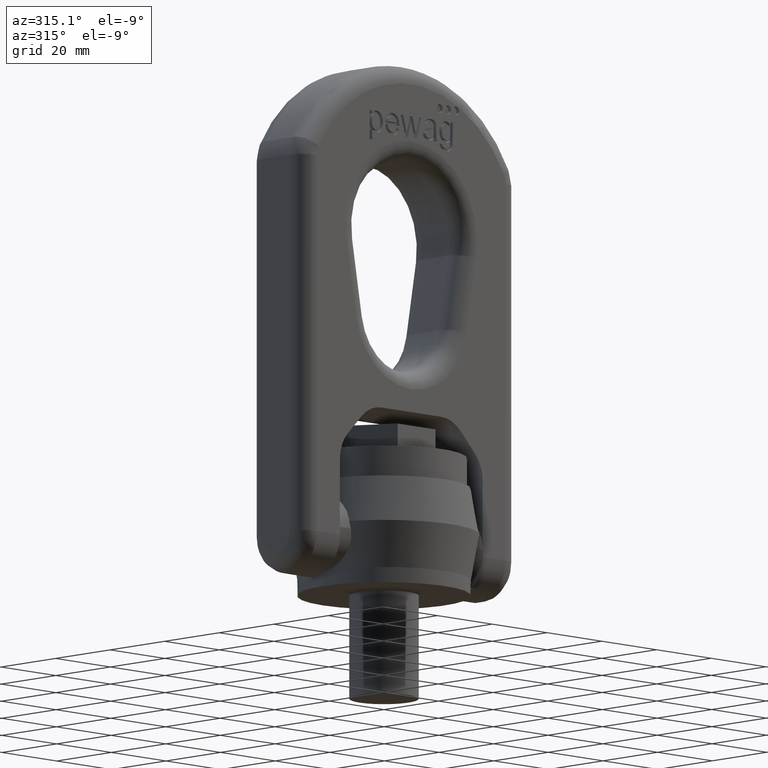
[diagram: clean part render]
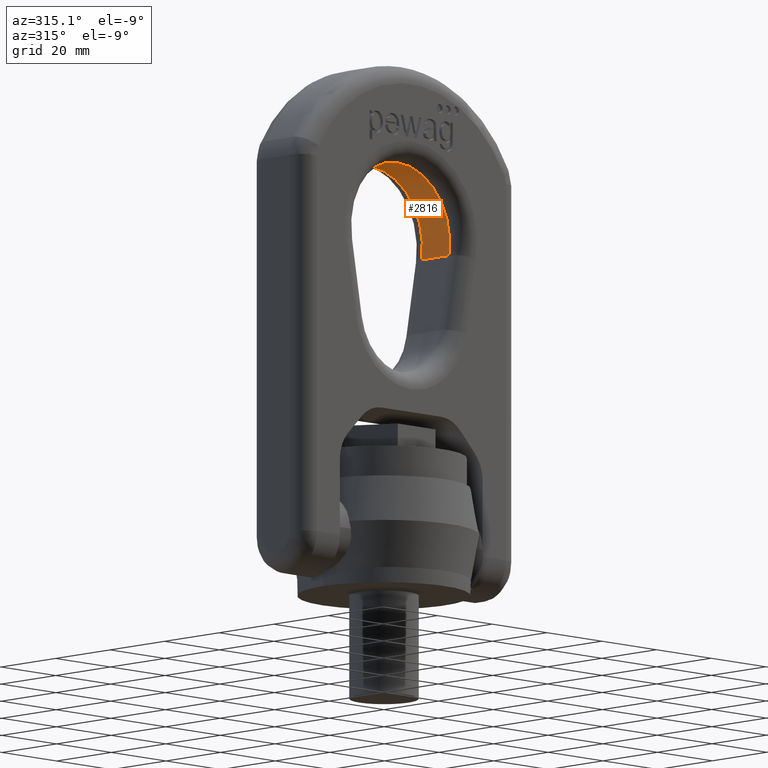
[diagram: same view with one face highlighted and labeled with its STEP entity id]
A machine part, auxiliary view. The second image highlights one B-rep face of the part: STEP entity #2816.
In plain terms, the highlighted cylindrical surface (partial cylindrical patch) has radius 19 mm, axis along (0, 1, 0).
Its self-contained STEP definition (entity closure, byte-faithful):
#1858=LINE('',#7726,#2166);
#1860=LINE('',#7732,#2168);
#2166=VECTOR('',#6329,1.);
#2168=VECTOR('',#6335,1.);
#2456=FACE_OUTER_BOUND('',#3194,.T.);
#2816=ADVANCED_FACE('',(#2456),#3045,.F.);
#3045=CYLINDRICAL_SURFACE('',#5898,19.);
#3194=EDGE_LOOP('',(#3723,#3724,#3725,#3726));
#3723=ORIENTED_EDGE('',*,*,#5352,.T.);
#3724=ORIENTED_EDGE('',*,*,#5354,.T.);
#3725=ORIENTED_EDGE('',*,*,#5355,.F.);
#3726=ORIENTED_EDGE('',*,*,#5356,.T.);
#4913=VERTEX_POINT('',#7725);
#4914=VERTEX_POINT('',#7727);
#4915=VERTEX_POINT('',#7731);
#4916=VERTEX_POINT('',#7733);
#5352=EDGE_CURVE('',#4914,#4913,#1858,.T.);
#5354=EDGE_CURVE('',#4913,#4915,#5787,.T.);
#5355=EDGE_CURVE('',#4916,#4915,#1860,.T.);
#5356=EDGE_CURVE('',#4916,#4914,#5788,.T.);
#5787=CIRCLE('',#5896,19.);
#5788=CIRCLE('',#5897,19.);
#5896=AXIS2_PLACEMENT_3D('',#7730,#6333,#6334);
#5897=AXIS2_PLACEMENT_3D('',#7734,#6336,#6337);
#5898=AXIS2_PLACEMENT_3D('',#7735,#6338,#6339);
#6329=DIRECTION('',(0.,1.,0.));
#6333=DIRECTION('',(2.34291072916505E-15,1.,0.));
#6334=DIRECTION('',(-1.,2.32818150723203E-15,0.));
#6335=DIRECTION('',(0.,1.,0.));
#6336=DIRECTION('',(0.,-1.,0.));
#6337=DIRECTION('',(0.,0.,-1.));
#6338=DIRECTION('',(0.,1.,0.));
#6339=DIRECTION('',(0.,0.,1.));
#7725=CARTESIAN_POINT('',(-18.711347307232,5.00000000000006,90.7006846243283));
#7726=CARTESIAN_POINT('',(-18.711347307232,-10.,90.7006846243283));
#7727=CARTESIAN_POINT('',(-18.711347307232,-5.,90.7006846243283));
#7730=CARTESIAN_POINT('',(0.,4.99999999999999,94.));
#7731=CARTESIAN_POINT('',(18.711347307232,4.99999999999994,90.7006846243283));
#7732=CARTESIAN_POINT('',(18.711347307232,-10.,90.7006846243283));
#7733=CARTESIAN_POINT('',(18.711347307232,-5.,90.7006846243283));
#7734=CARTESIAN_POINT('',(0.,-5.,94.));
#7735=CARTESIAN_POINT('',(0.,-10.,94.));